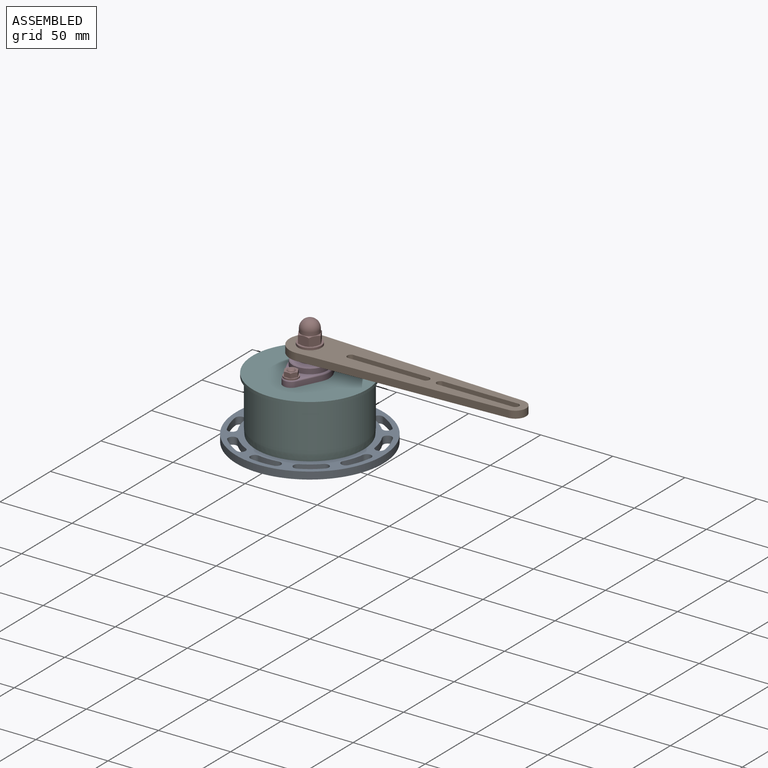
[diagram: assembled view]
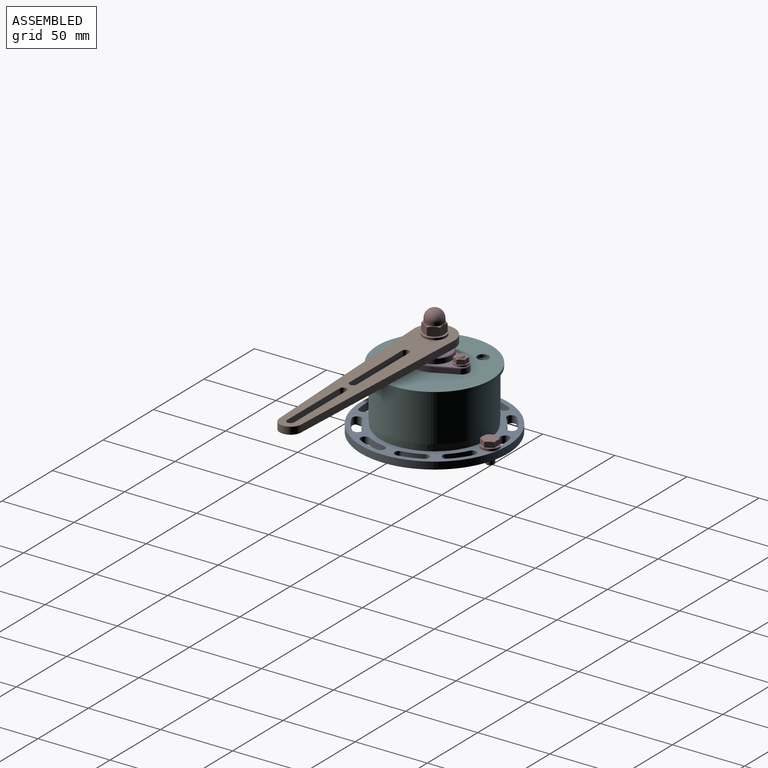
[diagram: assembled view, second angle]
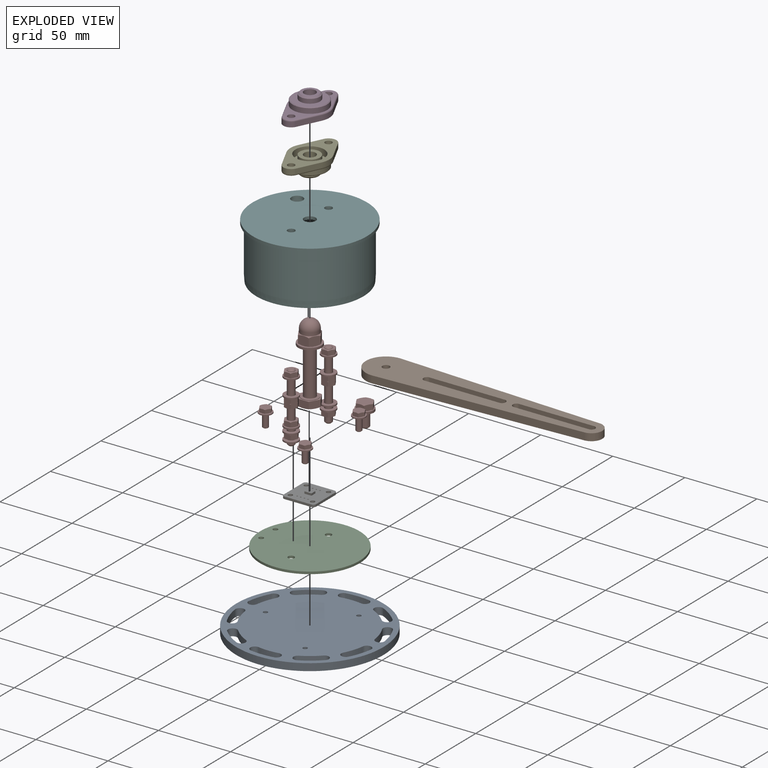
[diagram: exploded view]
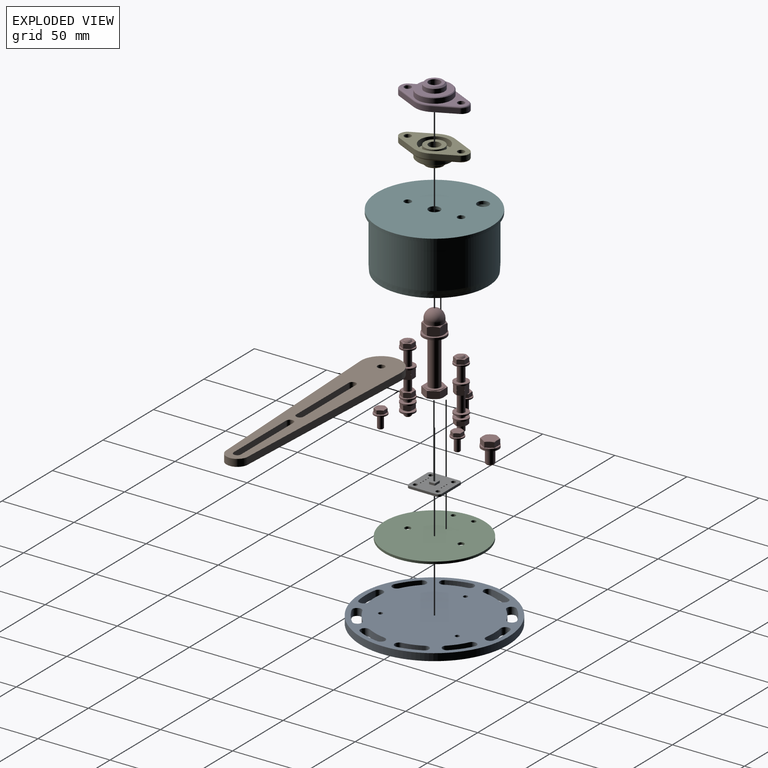
[diagram: exploded view, second angle]
FCSTD DOCUMENT  (FreeCAD 1.0R39319 (Git))
Label: RuderlageV2
License: All rights reserved
objects: Part::FeaturePython×31, TechDraw::DrawViewDimension×20, Sketcher::SketchObject×8, TechDraw::DrawProjGroupItem×7, PartDesign::Pad×6, PartDesign::Body×6, TechDraw::DrawViewAnnotation×6, App::Link×4, TechDraw::DrawSVGTemplate×3, TechDraw::DrawPage×3, App::Part×2, PartDesign::SubShapeBinder×1, Part::Cylinder×1, Part::Cut×1, PartDesign::Pocket×1, PartDesign::PolarPattern×1, TechDraw::DrawViewSection×1
note: 105 computed .brp shape members not serialized (recipe doc carries the construction recipe); baked Part::Feature solids carry a one-line shape summary decoded from their .brp
EXTERNAL_REF file=KFL08.FCStd obj=Body
EXTERNAL_REF file=HtMuffenstopfenDn75.FCStd obj=Body
EXTERNAL_REF file=ZugentlastungKAZU_0442.FCStd obj=Body

FEATURE [App::Link] Link  label="LagerTop"
  LinkPlacement = pos=(6.46027e-06,-1.279e-13,38.32) rot=(0,0,1;0rad)
  LinkedObject = -> <external KFL08.FCStd>#Body
  Placement = pos=(6.46027e-06,-1.279e-13,38.32) rot=(0,0,1;0rad)
FEATURE [App::Link] Link001  label="LagerBottom"
  LinkPlacement = pos=(6.10118e-06,4.654e-13,36.19) rot=(0,1,0;3.14159rad)
  LinkedObject = -> <external KFL08.FCStd>#Body
  Placement = pos=(6.10118e-06,4.654e-13,36.19) rot=(0,1,0;3.14159rad)
FEATURE [Sketcher::SketchObject] Sketch
  ArcFitTolerance = 1e-06
  AttachmentSupport = -> [XY_Plane]
  FullyConstrained = true
  MakeInternals = false
  MapMode = 5
  sketch-geometry (17):
    g0: Circle CenterX=-8.72817e-11 CenterY=-1.54759e-11 CenterZ=0 NormalX=0 NormalY=0 NormalZ=1 AngleXU=0 Radius=35.75
    g1: Circle CenterX=-18.5 CenterY=-4.035e-13 CenterZ=0 NormalX=0 NormalY=0 NormalZ=1 AngleXU=0 Radius=1.6
    g2: Circle CenterX=18.5 CenterY=-2.90037e-11 CenterZ=0 NormalX=0 NormalY=0 NormalZ=1 AngleXU=0 Radius=1.6
    g3: LineSegment [constr] StartX=21.6506 StartY=12.5 StartZ=0 EndX=-21.6506 EndY=12.5 EndZ=0
    g4: LineSegment [constr] StartX=-21.6506 StartY=12.5 StartZ=0 EndX=-1.03665e-10 EndY=-25 EndZ=0
    g5: LineSegment [constr] StartX=-1.03665e-10 StartY=-25 StartZ=0 EndX=21.6506 EndY=12.5 EndZ=0
    g6: Circle [constr] CenterX=-8.72817e-11 CenterY=-1.54759e-11 CenterZ=0 NormalX=0 NormalY=0 NormalZ=1 AngleXU=0 Radius=25
    g7: Circle CenterX=-21.6506 CenterY=12.5 CenterZ=0 NormalX=0 NormalY=0 NormalZ=1 AngleXU=0 Radius=5
    g8: Circle CenterX=21.6506 CenterY=12.5 CenterZ=0 NormalX=0 NormalY=0 NormalZ=1 AngleXU=0 Radius=5
    g9: Circle CenterX=-1.03665e-10 CenterY=-25 CenterZ=0 NormalX=0 NormalY=0 NormalZ=1 AngleXU=0 Radius=5
    g10: LineSegment [constr] StartX=2.63434e-11 StartY=30.75 StartZ=0 EndX=-26.6303 EndY=-15.375 EndZ=0
    g11: LineSegment [constr] StartX=-26.6303 StartY=-15.375 StartZ=0 EndX=26.6303 EndY=-15.375 EndZ=0
    g12: LineSegment [constr] StartX=26.6303 StartY=-15.375 StartZ=0 EndX=2.63434e-11 EndY=30.75 EndZ=0
    g13: Circle [constr] CenterX=-8.72817e-11 CenterY=-1.54759e-11 CenterZ=0 NormalX=0 NormalY=0 NormalZ=1 AngleXU=0 Radius=30.75
    g14: Circle CenterX=2.63434e-11 CenterY=30.75 CenterZ=0 NormalX=0 NormalY=0 NormalZ=1 AngleXU=0 Radius=2
    g15: Circle CenterX=-26.6303 CenterY=-15.375 CenterZ=0 NormalX=0 NormalY=0 NormalZ=1 AngleXU=0 Radius=2
    g16: Circle CenterX=26.6303 CenterY=-15.375 CenterZ=0 NormalX=0 NormalY=0 NormalZ=1 AngleXU=0 Radius=2
  constraints (41):
    c: Diameter(g0) = 71.5
    c: PointOnObject(g1,g-1)
    c: Equal(g1,g2)
    c: Diameter(g1) = 3.2
    c: Symmetric(g1,g2,g0)
    c: DistanceX(g1,g2) = 37
    c: Symmetric(g1,g2,g-2)
    c: Coincident(g3,g4)
    c: Coincident(g4,g5)
    c: Coincident(g5,g3)
    c: Equal(g3,g4)
    c: Equal(g3,g5)
    c: PointOnObject(g3,g6)
    c: PointOnObject(g4,g6)
    c: PointOnObject(g5,g6)
    c: Coincident(g6,g0)
    c: Horizontal(g3)
    c: Coincident(g7,g3)
    c: Diameter(g7) = 10
    c: Diameter(g6) = 50
    c: Coincident(g8,g3)
    c: Coincident(g9,g4)
    c: Equal(g7,g8)
    c: Equal(g8,g9)
    c: Coincident(g10,g11)
    c: Coincident(g11,g12)
    c: Coincident(g12,g10)
    c: Equal(g10,g11)
    c: Equal(g10,g12)
    c: PointOnObject(g10,g13)
    c: PointOnObject(g11,g13)
    c: PointOnObject(g12,g13)
    c: Coincident(g13,g0)
    c: PointOnObject(g12,g-2)
    c: Diameter(g13) = 61.5
    c: Coincident(g14,g10)
    c: Diameter(g14) = 4
    c: Coincident(g15,g10)
    c: Coincident(g16,g11)
    c: Equal(g14,g15)
    c: Equal(g15,g16)
FEATURE [Sketcher::SketchObject] Sketch005
  ArcFitTolerance = 0
  AttachmentSupport = -> [XY_Plane005]
  FullyConstrained = true
  MakeInternals = false
  MapMode = 5
  expr: Constraints[8] = 19 mm / 2
  sketch-geometry (26):
    g0: LineSegment StartX=-11.45 StartY=9.25 StartZ=0 EndX=-11.45 EndY=-9.25 EndZ=0
    g1: LineSegment StartX=-9.45 StartY=-11.25 StartZ=0 EndX=9.45 EndY=-11.25 EndZ=0
    g2: LineSegment StartX=11.45 StartY=-9.25 StartZ=0 EndX=11.45 EndY=9.25 EndZ=0
    g3: LineSegment StartX=9.45 StartY=11.25 StartZ=0 EndX=-9.45 EndY=11.25 EndZ=0
    g4: GeomPoint [constr] X=3.063e-13 Y=-4.789e-13 Z=0
    g5: Circle CenterX=-7.86091 CenterY=7.69455 CenterZ=0 NormalX=0 NormalY=0 NormalZ=1 AngleXU=0 Radius=1.5
    g6: Circle CenterX=7.86091 CenterY=7.69455 CenterZ=0 NormalX=0 NormalY=0 NormalZ=1 AngleXU=0 Radius=1.5
    g7: Circle CenterX=-7.86091 CenterY=-7.69455 CenterZ=0 NormalX=0 NormalY=0 NormalZ=1 AngleXU=0 Radius=1.5
    g8: Circle CenterX=7.86091 CenterY=-7.69455 CenterZ=0 NormalX=0 NormalY=0 NormalZ=1 AngleXU=0 Radius=1.5
    g9: LineSegment [constr] StartX=-9.45 StartY=9.25 StartZ=0 EndX=9.45 EndY=-9.25 EndZ=0
    g10: LineSegment [constr] StartX=-9.45 StartY=-9.25 StartZ=0 EndX=9.45 EndY=9.25 EndZ=0
    g11: Circle [constr] CenterX=3.063e-13 CenterY=-4.789e-13 CenterZ=0 NormalX=0 NormalY=0 NormalZ=1 AngleXU=0 Radius=9.5
    g12: Circle [constr] CenterX=3.063e-13 CenterY=-4.789e-13 CenterZ=0 NormalX=0 NormalY=0 NormalZ=1 AngleXU=0 Radius=11
    g13: ArcOfCircle CenterX=-9.45 CenterY=9.25 CenterZ=0 NormalX=0 NormalY=0 NormalZ=1 AngleXU=0 Radius=2 StartAngle=1.5708 EndAngle=3.14159
    g14: ArcOfCircle CenterX=9.45 CenterY=9.25 CenterZ=0 NormalX=0 NormalY=0 NormalZ=1 AngleXU=0 Radius=2 StartAngle=-9.9352e-12 EndAngle=1.5708
    g15: ArcOfCircle CenterX=-9.45 CenterY=-9.25 CenterZ=0 NormalX=0 NormalY=0 NormalZ=1 AngleXU=0 Radius=2 StartAngle=3.14159 EndAngle=4.71239
    g16: ArcOfCircle CenterX=9.45 CenterY=-9.25 CenterZ=0 NormalX=0 NormalY=0 NormalZ=1 AngleXU=0 Radius=2 StartAngle=4.71239 EndAngle=6.28319
    g17: Circle CenterX=-6.78897 CenterY=2.54 CenterZ=0 NormalX=0 NormalY=0 NormalZ=1 AngleXU=0 Radius=0.45
    g18: Circle CenterX=-6.78897 CenterY=0 CenterZ=0 NormalX=0 NormalY=0 NormalZ=1 AngleXU=0 Radius=0.45
    g19: Circle CenterX=-6.78897 CenterY=-2.54 CenterZ=0 NormalX=0 NormalY=0 NormalZ=1 AngleXU=0 Radius=0.45
    g20: Circle CenterX=6.78897 CenterY=-1.27 CenterZ=0 NormalX=0 NormalY=0 NormalZ=1 AngleXU=0 Radius=0.45
    g21: Circle CenterX=6.78897 CenterY=-3.81 CenterZ=0 NormalX=0 NormalY=0 NormalZ=1 AngleXU=0 Radius=0.45
    g22: Circle CenterX=6.78897 CenterY=1.27 CenterZ=0 NormalX=0 NormalY=0 NormalZ=1 AngleXU=0 Radius=0.45
    g23: Circle CenterX=6.78897 CenterY=3.81 CenterZ=0 NormalX=0 NormalY=0 NormalZ=1 AngleXU=0 Radius=0.45
    g24: GeomPoint [constr] X=6.78897 Y=6.64529 Z=0
    g25: GeomPoint [constr] X=-6.78897 Y=6.64529 Z=0
  constraints (62):
    c: Horizontal(g1)
    c: Vertical(g0)
    c: Coincident(g4,g-1)
    c: Diameter(g5) = 3
    c: Equal(g5,g6)
    c: Equal(g5,g7)
    c: Equal(g5,g8)
    c: Coincident(g12,g4)
    c: Radius(g11) = 9.5
    c: Radius(g12) = 11
    c: Coincident(g11,g4)
    c: PointOnObject(g6,g10)
    c: PointOnObject(g6,g12)
    c: PointOnObject(g5,g9)
    c: PointOnObject(g5,g12)
    c: Tangent(g3,g13) = -1.5708
    c: Tangent(g0,g13) = -1.5708
    c: Tangent(g3,g14) = -1.5708
    c: Tangent(g2,g14) = -1.5708
    c: Tangent(g1,g15) = -1.5708
    c: Tangent(g0,g15) = -1.5708
    c: Tangent(g1,g16) = -1.5708
    c: Tangent(g2,g16) = -1.5708
    c: DistanceY(g1,g3) = 22.5
    c: DistanceX(g0,g2) = 22.9
    c: Radius(g13) = 2
    c: Equal(g13,g14)
    c: Equal(g13,g15)
    c: Equal(g13,g16)
    c: Symmetric(g6,g7,g4)
    c: PointOnObject(g8,g9)
    c: PointOnObject(g8,g12)
    c: Coincident(g13,g9)
    c: Coincident(g10,g14)
    c: Coincident(g10,g15)
    c: Coincident(g9,g16)
    c: Symmetric(g3,g3,g-2)
    c: Symmetric(g2,g2,g-1)
    c: Diameter(g17) = 0.9
    c: Equal(g17,g18)
    c: Equal(g17,g19)
    c: Vertical(g17,g18)
    c: Vertical(g17,g19)
    c: DistanceY(g18,g17) = 2.54
    c: DistanceY(g19,g18) = 2.54
    c: PointOnObject(g18,g-1)
    c: Equal(g17,g23)
    c: Equal(g17,g22)
    c: Equal(g17,g20)
    c: Equal(g17,g21)
    c: Vertical(g23,g22)
    c: Vertical(g23,g21)
    c: DistanceY(g22,g23) = 2.54
    c: DistanceY(g21,g20) = 2.54
    c: DistanceY(g20,g22) = 2.54
    c: Symmetric(g22,g20,g-1)
    c: PointOnObject(g24,g10)
    c: PointOnObject(g24,g11)
    c: Vertical(g23,g24)
    c: PointOnObject(g25,g9)
    c: PointOnObject(g25,g11)
    c: Vertical(g25,g17)
FEATURE [PartDesign::Pad] Pad006
  Direction = (0,0,1)
  Length = 1.6
  Length2 = 10
  Profile = -> Sketch005
  ReferenceAxis = -> Sketch005 [N_Axis]
  Suppressed = false
  Type = 0
FEATURE [Sketcher::SketchObject] Sketch006
  ArcFitTolerance = 0
  AttachmentSupport = -> [XY_Plane006]
  FullyConstrained = true
  MakeInternals = false
  MapMode = 5
  sketch-geometry (5):
    g0: LineSegment StartX=-2.45 StartY=1.95 StartZ=0 EndX=-2.45 EndY=-1.95 EndZ=0
    g1: LineSegment StartX=-2.45 StartY=-1.95 StartZ=0 EndX=2.45 EndY=-1.95 EndZ=0
    g2: LineSegment StartX=2.45 StartY=-1.95 StartZ=0 EndX=2.45 EndY=1.95 EndZ=0
    g3: LineSegment StartX=2.45 StartY=1.95 StartZ=0 EndX=-2.45 EndY=1.95 EndZ=0
    g4: GeomPoint [constr] X=0 Y=0 Z=0
  constraints (12):
    c: Coincident(g0,g1)
    c: Coincident(g1,g2)
    c: Coincident(g2,g3)
    c: Coincident(g3,g0)
    c: Horizontal(g1)
    c: Horizontal(g3)
    c: Vertical(g0)
    c: Vertical(g2)
    c: Symmetric(g1,g0,g4)
    c: Coincident(g4,g-1)
    c: DistanceX(g3,g3) = 4.9
    c: DistanceY(g1,g2) = 3.9
FEATURE [PartDesign::Pad] Pad005
  Direction = (0,0,1)
  Length = 1.75
  Length2 = 10
  Profile = -> Sketch006
  ReferenceAxis = -> Sketch006 [N_Axis]
  Suppressed = false
  Type = 0
FEATURE [PartDesign::Body] Body005  label="Soic8"
  AllowCompound = false
  Group = -> [Sketch006,Pad005]
  Origin = -> Origin006
  Placement = pos=(0,0,1.7) rot=(0,0,1;1.5708rad)
  Tip = -> Pad005
FEATURE [Sketcher::SketchObject] Sketch007
  ArcFitTolerance = 0
  AttachmentSupport = -> [XY_Plane005]
  FullyConstrained = true
  MakeInternals = false
  MapMode = 5
FEATURE [PartDesign::Body] Body004  label="Platine"
  AllowCompound = false
  Group = -> [Sketch005,Pad006,Sketch007]
  Origin = -> Origin005
  Placement = pos=(0.166369,-0.166369,0.4) rot=(0,0,1;0rad)
  Tip = -> Pad006
FEATURE [App::Part] Part  label="Sensor"
  Group = -> [Body004,Body005]
  Origin = -> Origin004
  Placement = pos=(5.59289e-11,-1.421e-13,13.3) rot=(0,0,1;4.71239rad)
FEATURE [Part::FeaturePython] Screw  label="M8x40-Screw"  # WARN: FeaturePython — macro-defined, semantics opaque (R4)
  Diameter = 9
  Invert = false
  LeftHanded = false
  Length = 5
  LengthCustom = 40
  MatchOuter = false
  OffsetAngle = 0
  Placement = pos=(5.00839e-06,6.429e-13,22.79) rot=(0,1,0;3.14159rad)
  Thread = false
  Type = 40
FEATURE [App::Link] Link002  label="MuffenStopfen HT75"
  LinkPlacement = pos=(6.46027e-06,0,38.32) rot=(0,1,0;1.5708rad)
  LinkedObject = -> <external HtMuffenstopfenDn75.FCStd>#Body
  Placement = pos=(6.46027e-06,0,38.32) rot=(0,1,0;1.5708rad)
FEATURE [Part::FeaturePython] ThreadedRod  label="M5x48-ThreadedRod"  # WARN: FeaturePython — macro-defined, semantics opaque (R4)
  Diameter = 7
  DiameterCustom = 4
  Invert = true
  LeftHanded = false
  Length = 48
  MatchOuter = false
  OffsetAngle = 0
  PitchCustom = 1
  Placement = pos=(2.89997e-11,18.5,47.1) rot=(0,0,1;0rad)
  Thread = false
  Type = 4
FEATURE [Part::FeaturePython] ThreadedRod001  label="M5x48-ThreadedRod001"  # WARN: FeaturePython — macro-defined, semantics opaque (R4)
  Diameter = 7
  DiameterCustom = 4
  Invert = true
  LeftHanded = false
  Length = 48
  MatchOuter = false
  OffsetAngle = 0
  PitchCustom = 1
  Placement = pos=(4.077e-13,-18.5,47.1) rot=(0,0,1;0rad)
  Thread = false
  Type = 4
FEATURE [Part::FeaturePython] Washer001  label="M5-Washer001"  # WARN: FeaturePython — macro-defined, semantics opaque (R4)
  Diameter = 6
  Invert = false
  MatchOuter = false
  OffsetAngle = 0
  Placement = pos=(4.1e-15,-18.5,2.1) rot=(0,0,1;0rad)
  Type = 8
FEATURE [Part::FeaturePython] Nut  label="M5-Nut"  # WARN: FeaturePython — macro-defined, semantics opaque (R4)
  Diameter = 7
  Invert = false
  LeftHanded = false
  MatchOuter = false
  OffsetAngle = 0
  Placement = pos=(2.89992e-11,18.5,7.6) rot=(0,1,0;3.14159rad)
  Thread = false
  Type = 31
FEATURE [Part::FeaturePython] Nut001  label="M5-Nut016"  # WARN: FeaturePython — macro-defined, semantics opaque (R4)
  Diameter = 7
  Invert = false
  LeftHanded = false
  MatchOuter = false
  OffsetAngle = 0
  Placement = pos=(4.3e-15,-18.5,4.0143) rot=(0,0,1;0rad)
  Thread = false
  Type = 31
FEATURE [Part::FeaturePython] Nut002  label="M5-Nut007"  # WARN: FeaturePython — macro-defined, semantics opaque (R4)
  Diameter = 7
  Invert = false
  LeftHanded = false
  MatchOuter = false
  OffsetAngle = 0
  Placement = pos=(6.46027e-06,-18.5,42.62) rot=(0,0,1;0rad)
  Thread = false
  Type = 31
FEATURE [Part::FeaturePython] Nut003  label="M5-Nut008"  # WARN: FeaturePython — macro-defined, semantics opaque (R4)
  Diameter = 7
  Invert = false
  LeftHanded = false
  MatchOuter = false
  OffsetAngle = 0
  Placement = pos=(6.46027e-06,18.5,42.6343) rot=(0,0,1;0rad)
  Thread = false
  Type = 31
FEATURE [Part::FeaturePython] Washer002  label="M5-Washer002"  # WARN: FeaturePython — macro-defined, semantics opaque (R4)
  Diameter = 6
  Invert = false
  MatchOuter = false
  OffsetAngle = 0
  Placement = pos=(5.70777e-06,18.5,29.89) rot=(0,0,1;0rad)
  Type = 8
FEATURE [Part::FeaturePython] Washer003  label="M5-Washer003"  # WARN: FeaturePython — macro-defined, semantics opaque (R4)
  Diameter = 6
  Invert = false
  MatchOuter = false
  OffsetAngle = 0
  Placement = pos=(5.70778e-06,-18.5,29.89) rot=(0,0,1;0rad)
  Type = 8
FEATURE [Part::FeaturePython] Washer004  label="M5-Washer004"  # WARN: FeaturePython — macro-defined, semantics opaque (R4)
  Diameter = 6
  Invert = false
  MatchOuter = false
  OffsetAngle = 0
  Placement = pos=(6.46027e-06,18.5,41.82) rot=(0,0,1;0rad)
  Type = 8
FEATURE [Part::FeaturePython] Washer005  label="M5-Washer005"  # WARN: FeaturePython — macro-defined, semantics opaque (R4)
  Diameter = 6
  Invert = false
  MatchOuter = false
  OffsetAngle = 0
  Placement = pos=(6.46027e-06,-18.5,41.82) rot=(0,0,1;0rad)
  Type = 8
FEATURE [Part::FeaturePython] Nut004  label="M5-Nut009"  # WARN: FeaturePython — macro-defined, semantics opaque (R4)
  Diameter = 7
  Invert = false
  LeftHanded = false
  MatchOuter = false
  OffsetAngle = 0
  Placement = pos=(6.46027e-06,18.5,26.6343) rot=(0,0,1;0rad)
  Thread = false
  Type = 31
FEATURE [Part::FeaturePython] Nut005  label="M5-Nut010"  # WARN: FeaturePython — macro-defined, semantics opaque (R4)
  Diameter = 7
  Invert = false
  LeftHanded = false
  MatchOuter = false
  OffsetAngle = 0
  Placement = pos=(6.46027e-06,-18.5,26.62) rot=(0,0,1;0rad)
  Thread = false
  Type = 31
FEATURE [Part::FeaturePython] Screw001  label="M6x12-Screw"  # WARN: FeaturePython — macro-defined, semantics opaque (R4)
  Diameter = 8
  Invert = false
  LeftHanded = false
  Length = 0
  LengthCustom = 12
  MatchOuter = false
  OffsetAngle = 0
  Placement = pos=(7.5,43.8634,0.7) rot=(0,0,1;0rad)
  Thread = false
  Type = 40
FEATURE [Part::FeaturePython] Washer006  label="M6-Washer"  # WARN: FeaturePython — macro-defined, semantics opaque (R4)
  Diameter = 7
  Invert = false
  MatchOuter = false
  OffsetAngle = 0
  Placement = pos=(7.5,43.8634,-0.9) rot=(0,0,1;0rad)
  Type = 8
FEATURE [App::Link] Link003  label="Zugentlastung"
  LinkPlacement = pos=(-28.55,-1.60916e-07,9.9643) rot=(0.57735,0.57735,0.57735;2.0944rad)
  LinkedObject = -> <external ZugentlastungKAZU_0442.FCStd>#Body
  Placement = pos=(-28.55,-1.60916e-07,9.9643) rot=(0.57735,0.57735,0.57735;2.0944rad)
FEATURE [Part::FeaturePython] Washer007  label="M8-Washer"  # WARN: FeaturePython — macro-defined, semantics opaque (R4)
  Diameter = 8
  Invert = false
  MatchOuter = false
  OffsetAngle = 0
  Placement = pos=(0,0,55) rot=(0,0,1;0rad)
  Type = 8
FEATURE [Part::FeaturePython] Nut006  label="M8-Nut"  # WARN: FeaturePython — macro-defined, semantics opaque (R4)
  Diameter = 4
  Invert = false
  LeftHanded = false
  MatchOuter = false
  OffsetAngle = 0
  Placement = pos=(0,0,56.6) rot=(0,0,1;0rad)
  Thread = false
  Type = 9
FEATURE [TechDraw::DrawSVGTemplate] Template
  Height = 210
  Orientation = 1
  Template = C:/Program Files/FreeCAD/data/Mod/TechDraw/Templates/Default_Template_A4_Landscape.svg
  Width = 297
FEATURE [Sketcher::SketchObject] Sketch018
  ArcFitTolerance = 1e-06
  AttachmentSupport = -> [XY_Plane017]
  FullyConstrained = true
  MakeInternals = false
  MapMode = 5
  sketch-geometry (14):
    g0: ArcOfCircle CenterX=2.562e-13 CenterY=0 CenterZ=0 NormalX=0 NormalY=0 NormalZ=1 AngleXU=0 Radius=14 StartAngle=1.52517 EndAngle=4.75802
    g1: Circle [constr] CenterX=2.562e-13 CenterY=0 CenterZ=0 NormalX=0 NormalY=0 NormalZ=1 AngleXU=0 Radius=150
    g2: ArcOfCircle CenterX=90.5 CenterY=-1e-16 CenterZ=0 NormalX=0 NormalY=0 NormalZ=1 AngleXU=0 Radius=2.55 StartAngle=1.5708 EndAngle=4.71239
    g3: ArcOfCircle CenterX=142.5 CenterY=-2.8e-15 CenterZ=0 NormalX=0 NormalY=0 NormalZ=1 AngleXU=0 Radius=2.55 StartAngle=4.71239 EndAngle=7.85398
    g4: LineSegment StartX=90.5 StartY=2.55 StartZ=0 EndX=142.5 EndY=2.55 EndZ=0
    g5: LineSegment StartX=90.5 StartY=-2.55 StartZ=0 EndX=142.5 EndY=-2.55 EndZ=0
    g6: ArcOfCircle CenterX=142.5 CenterY=-2.8e-15 CenterZ=0 NormalX=0 NormalY=0 NormalZ=1 AngleXU=0 Radius=7.5 StartAngle=4.75802 EndAngle=7.80835
    g7: LineSegment StartX=0.638596 StartY=13.9854 StartZ=0 EndX=142.842 EndY=7.49219 EndZ=0
    g8: LineSegment StartX=142.842 StartY=-7.49219 StartZ=0 EndX=0.638596 EndY=-13.9854 EndZ=0
    g9: ArcOfCircle CenterX=28.5 CenterY=-1e-16 CenterZ=0 NormalX=0 NormalY=0 NormalZ=1 AngleXU=0 Radius=2.55 StartAngle=1.5708 EndAngle=4.71239
    g10: ArcOfCircle CenterX=80.5 CenterY=-5.1e-15 CenterZ=0 NormalX=0 NormalY=0 NormalZ=1 AngleXU=0 Radius=2.55 StartAngle=4.71239 EndAngle=7.85398
    g11: LineSegment StartX=28.5 StartY=2.55 StartZ=0 EndX=80.5 EndY=2.55 EndZ=0
    g12: LineSegment StartX=28.5 StartY=-2.55 StartZ=0 EndX=80.5 EndY=-2.55 EndZ=0
    g13: Circle CenterX=2.562e-13 CenterY=0 CenterZ=0 NormalX=0 NormalY=0 NormalZ=1 AngleXU=0 Radius=2.5
  constraints (32):
    c: Coincident(g0,g-1)
    c: Diameter(g0) = 28
    c: Coincident(g1,g0)
    c: Diameter(g1) = 300
    c: Tangent(g2,g4) = 1.5708
    c: Tangent(g2,g5) = -1.5708
    c: Tangent(g3,g4) = 1.5708
    c: Tangent(g3,g5) = -1.5708
    c: Equal(g2,g3)
    c: Horizontal(g5)
    c: PointOnObject(g2,g-1)
    c: Tangent(g6,g7) = 1.5708
    c: Tangent(g6,g8) = 1.5708
    c: Tangent(g0,g8) = 1.5708
    c: Tangent(g0,g7) = 1.5708
    c: Tangent(g6,g1)
    c: Tangent(g9,g11) = 1.5708
    c: Tangent(g9,g12) = -1.5708
    c: Tangent(g10,g11) = 1.5708
    c: Tangent(g10,g12) = -1.5708
    c: Equal(g9,g10)
    c: Horizontal(g12)
    c: PointOnObject(g9,g-1)
    c: Radius(g10) = 2.55
    c: Equal(g12,g5)
    c: DistanceX(g10,g2) = 10
    c: DistanceX(g2,g3) = 52
    c: Radius(g6) = 7.5
    c: Coincident(g3,g6)
    c: Equal(g10,g2)
    c: Coincident(g13,g0)
    c: Diameter(g13) = 5
FEATURE [PartDesign::Pad] Pad015
  Direction = (0,0,1)
  Length = 5
  Length2 = 10
  Profile = -> Sketch018
  ReferenceAxis = -> Sketch018 [N_Axis]
  Suppressed = false
  Type = 0
FEATURE [PartDesign::Body] Body014  label="Arm001"
  AllowCompound = false
  Group = -> [Sketch018,Pad015]
  Origin = -> Origin017
  Placement = pos=(0,0,51) rot=(0,0,1;0rad)
  Tip = -> Pad015
FEATURE [TechDraw::DrawProjGroupItem] View002  label="Arm"
  CoarseView = false
  Direction = (0,0,1)
  Focus = 100
  HardHidden = false
  IsoCount = 0
  IsoHidden = false
  IsoVisible = false
  LockPosition = false
  Perspective = false
  Rotation = 0
  RotationVector = (1,0,0)
  ScaleType = 0
  ScrubCount = 0
  SeamHidden = false
  SeamVisible = true
  SmoothHidden = false
  SmoothVisible = true
  Source = -> [Body014]
  Type = 0
  X = 138.844
  XDirection = (1,0,0)
  Y = 25.6049
FEATURE [TechDraw::DrawViewDimension] Dimension002
  AngleOverride = false
  Arbitrary = false
  ArbitraryTolerances = false
  BoxCorners = (2) [(-82,-14,0),(82,14,0)]
  EqualTolerance = true
  ExtensionAngle = 0
  FormatSpec = %.2f
  FormatSpecOverTolerance = %+.2f
  FormatSpecUnderTolerance = %+.2f
  Inverted = false
  LineAngle = 0
  LockPosition = false
  MeasureType = 1
  OverTolerance = 0
  References2D = -> [View002]
  Rotation = 0
  ScaleType = 0
  TheoreticalExact = false
  Type = 1
  UnderTolerance = 0
  X = 0
  Y = -12.1657
FEATURE [PartDesign::SubShapeBinder] Binder
  BindCopyOnChange = 0
  BindMode = 0
  ClaimChildren = false
  Context = -> Body012 [Binder.]
  Fuse = false
  MakeFace = true
  OffsetFill = false
  OffsetIntersection = false
  OffsetJoinType = 0
  OffsetOpenResult = false
  PartialLoad = false
  Relative = true
  Support = -> [Body[Pad.Face10]]
  _Version = 2
FEATURE [Sketcher::SketchObject] Sketch015
  ArcFitTolerance = 1e-06
  AttachmentSupport = -> [XY_Plane015]
  ExternalGeometry = -> [Binder]
  FullyConstrained = true
  MakeInternals = false
  MapMode = 5
  sketch-geometry (5):
    g0: Circle CenterX=-1.952e-13 CenterY=-3.03e-14 CenterZ=0 NormalX=0 NormalY=0 NormalZ=1 AngleXU=0 Radius=51
    g1: Circle [constr] CenterX=-1.952e-13 CenterY=-3.03e-14 CenterZ=0 NormalX=0 NormalY=0 NormalZ=1 AngleXU=0 Radius=44.5
    g2: Circle CenterX=15.375 CenterY=26.6303 CenterZ=0 NormalX=0 NormalY=0 NormalZ=1 AngleXU=0 Radius=1.5
    g3: Circle CenterX=-30.75 CenterY=0 CenterZ=0 NormalX=0 NormalY=0 NormalZ=1 AngleXU=0 Radius=1.5
    g4: Circle CenterX=15.375 CenterY=-26.6303 CenterZ=0 NormalX=0 NormalY=0 NormalZ=1 AngleXU=0 Radius=1.5
  constraints (10):
    c: Coincident(g0,g-1)
    c: Coincident(g1,g0)
    c: Diameter(g1) = 89
    c: Diameter(g0) = 102
    c: Coincident(g2,g-3)
    c: Coincident(g3,g-4)
    c: Coincident(g4,g-5)
    c: Diameter(g2) = 3
    c: Equal(g2,g4)
    c: Equal(g4,g3)
FEATURE [PartDesign::Pad] Pad013
  Direction = (0,0,1)
  Length = 5
  Length2 = 10
  Profile = -> Sketch015
  ReferenceAxis = -> Sketch015 [N_Axis]
  Reversed = true
  Suppressed = false
  Type = 0
FEATURE [TechDraw::DrawViewDimension] Dimension004
  AngleOverride = false
  Arbitrary = false
  ArbitraryTolerances = false
  BoxCorners = (2) [(-82,-14,0),(82,14,0)]
  EqualTolerance = true
  ExtensionAngle = 0
  FormatSpec = ⌀%.2f
  FormatSpecOverTolerance = %+.2f
  FormatSpecUnderTolerance = %+.2f
  Inverted = false
  LineAngle = 0
  LockPosition = false
  MeasureType = 1
  OverTolerance = 0
  References2D = -> [View002]
  Rotation = 0
  ScaleType = 0
  TheoreticalExact = false
  Type = 5
  UnderTolerance = 0
  X = -50.7863
  Y = 12.1513
FEATURE [TechDraw::DrawViewDimension] Dimension005
  AngleOverride = false
  Arbitrary = false
  ArbitraryTolerances = false
  BoxCorners = (2) [(-82,-14,0),(82,14,0)]
  EqualTolerance = true
  ExtensionAngle = 0
  FormatSpec = ⌀%.2f
  FormatSpecOverTolerance = %+.2f
  FormatSpecUnderTolerance = %+.2f
  Inverted = false
  LineAngle = 0
  LockPosition = false
  MeasureType = 1
  OverTolerance = 0
  References2D = -> [View002]
  Rotation = 0
  ScaleType = 0
  TheoreticalExact = false
  Type = 5
  UnderTolerance = 0
  X = 18.6944
  Y = 14.3323
FEATURE [TechDraw::DrawSVGTemplate] Template001
  Height = 210
  Orientation = 1
  Template = C:/Program Files/FreeCAD/data/Mod/TechDraw/Templates/Default_Template_A4_Landscape.svg
  Width = 297
FEATURE [Part::FeaturePython] Washer010  label="M5-Washer"  # WARN: FeaturePython — macro-defined, semantics opaque (R4)
  Diameter = 6
  Invert = false
  MatchOuter = false
  OffsetAngle = 0
  Placement = pos=(4.3e-15,-18.5,7.51) rot=(0,0,1;0rad)
  Type = 8
FEATURE [Part::FeaturePython] Washer013  label="M5-Washer016"  # WARN: FeaturePython — macro-defined, semantics opaque (R4)
  Diameter = 6
  Invert = false
  MatchOuter = false
  OffsetAngle = 0
  Placement = pos=(-4.1e-15,18.5,7.61809) rot=(0,0,1;0rad)
  Type = 8
FEATURE [Part::FeaturePython] Washer017  label="M5-Washer014"  # WARN: FeaturePython — macro-defined, semantics opaque (R4)
  Diameter = 6
  Invert = false
  MatchOuter = false
  OffsetAngle = 0
  Placement = pos=(4.3e-15,18.5,10.8143) rot=(0,0,1;0rad)
  Type = 8
FEATURE [Part::FeaturePython] Washer018  label="M5-Washer015"  # WARN: FeaturePython — macro-defined, semantics opaque (R4)
  Diameter = 6
  Invert = false
  MatchOuter = false
  OffsetAngle = 0
  Placement = pos=(4.3e-15,-18.5,10.8143) rot=(0,0,1;0rad)
  Type = 8
FEATURE [Part::FeaturePython] Nut008  label="M5-Nut017"  # WARN: FeaturePython — macro-defined, semantics opaque (R4)
  Diameter = 7
  Invert = false
  LeftHanded = false
  MatchOuter = false
  OffsetAngle = 0
  Placement = pos=(4.3e-15,-18.5,11.9143) rot=(0,0,1;0rad)
  Thread = false
  Type = 31
FEATURE [Part::FeaturePython] Nut009  label="M5-Nut011"  # WARN: FeaturePython — macro-defined, semantics opaque (R4)
  Diameter = 7
  Invert = false
  LeftHanded = false
  MatchOuter = false
  OffsetAngle = 0
  Placement = pos=(6.46027e-06,18.5,23.4343) rot=(0,0,1;0rad)
  Thread = false
  Type = 31
FEATURE [Part::Cylinder] Cylinder  label="MagnetDiametral"
  Angle = 360
  AttacherType = Attacher::AttachEngine3D
  FirstAngle = 0
  Height = 3
  Placement = pos=(5.00839e-06,6.429e-13,17.39) rot=(0,0,1;0rad)
  Radius = 3
  SecondAngle = 0
FEATURE [Part::Cut] Cut
  Base = -> Screw
  Tool = -> Cylinder
FEATURE [Sketcher::SketchObject] Sketch023
  ArcFitTolerance = 1e-06
  AttachmentSupport = -> [XY_Plane022]
  FullyConstrained = true
  MakeInternals = false
  MapMode = 5
  sketch-geometry (21):
    g0: Circle CenterX=1e-16 CenterY=0 CenterZ=0 NormalX=0 NormalY=0 NormalZ=1 AngleXU=0 Radius=34.5
    g1: Circle CenterX=0 CenterY=18.5 CenterZ=0 NormalX=0 NormalY=0 NormalZ=1 AngleXU=0 Radius=2.1
    g2: Circle CenterX=0 CenterY=-18.5 CenterZ=0 NormalX=0 NormalY=0 NormalZ=1 AngleXU=0 Radius=2.1
    g3: Circle [constr] CenterX=1e-16 CenterY=0 CenterZ=0 NormalX=0 NormalY=0 NormalZ=1 AngleXU=0 Radius=18.5
    g4: Circle [constr] CenterX=-3.64 CenterY=6.96 CenterZ=0 NormalX=0 NormalY=0 NormalZ=1 AngleXU=0 Radius=0.4
    g5: Circle [constr] CenterX=-1.1 CenterY=6.96 CenterZ=0 NormalX=0 NormalY=0 NormalZ=1 AngleXU=0 Radius=0.4
    g6: Circle [constr] CenterX=1.44 CenterY=6.96 CenterZ=0 NormalX=0 NormalY=0 NormalZ=1 AngleXU=0 Radius=0.4
    g7: Circle [constr] CenterX=3.98 CenterY=6.96 CenterZ=0 NormalX=0 NormalY=0 NormalZ=1 AngleXU=0 Radius=0.4
    g8: Circle [constr] CenterX=-2.37 CenterY=-6.62 CenterZ=0 NormalX=0 NormalY=0 NormalZ=1 AngleXU=0 Radius=0.4
    g9: Circle [constr] CenterX=0.17 CenterY=-6.62 CenterZ=0 NormalX=0 NormalY=0 NormalZ=1 AngleXU=0 Radius=0.4
    g10: Circle [constr] CenterX=2.71 CenterY=-6.62 CenterZ=0 NormalX=0 NormalY=0 NormalZ=1 AngleXU=0 Radius=0.4
    g11: LineSegment [constr] StartX=-9.08 StartY=11.62 StartZ=0 EndX=9.42 EndY=11.62 EndZ=0
    g12: ArcOfCircle [constr] CenterX=9.42 CenterY=9.62 CenterZ=0 NormalX=0 NormalY=0 NormalZ=1 AngleXU=0 Radius=2 StartAngle=7e-16 EndAngle=1.5708
    g13: LineSegment [constr] StartX=11.42 StartY=9.62 StartZ=0 EndX=11.42 EndY=-9.28 EndZ=0
    g14: ArcOfCircle [constr] CenterX=9.42 CenterY=-9.28 CenterZ=0 NormalX=0 NormalY=0 NormalZ=1 AngleXU=0 Radius=2 StartAngle=4.71239 EndAngle=6.28319
    g15: LineSegment [constr] StartX=9.42 StartY=-11.28 StartZ=0 EndX=-9.08 EndY=-11.28 EndZ=0
    g16: ArcOfCircle [constr] CenterX=-9.08 CenterY=-9.28 CenterZ=0 NormalX=0 NormalY=0 NormalZ=1 AngleXU=0 Radius=2 StartAngle=3.14159 EndAngle=4.71239
    g17: LineSegment [constr] StartX=-11.08 StartY=-9.28 StartZ=0 EndX=-11.08 EndY=9.62 EndZ=0
    g18: ArcOfCircle [constr] CenterX=-9.08 CenterY=9.62 CenterZ=0 NormalX=0 NormalY=0 NormalZ=1 AngleXU=0 Radius=2 StartAngle=1.5708 EndAngle=3.14159
    g19: Circle CenterX=-28.85 CenterY=7.05 CenterZ=0 NormalX=0 NormalY=0 NormalZ=1 AngleXU=0 Radius=1.6
    g20: Circle CenterX=-28.85 CenterY=-7.05 CenterZ=0 NormalX=0 NormalY=0 NormalZ=1 AngleXU=0 Radius=1.6
  constraints (59):
    c: Coincident(g0,g-1)
    c: Diameter(g0) = 69
    c: Diameter(g1) = 4.2
    c: Equal(g1,g2)
    c: Coincident(g3,g0)
    c: PointOnObject(g1,g3)
    c: Diameter(g3) = 37
    c: PointOnObject(g1,g-2)
    c: PointOnObject(g2,g3)
    c: PointOnObject(g2,g-2)
    c: Diameter(g4) = 0.8
    c: Equal(g8,g9)
    c: Equal(g9,g10)
    c: Equal(g10,g7)
    c: Equal(g7,g6)
    c: Equal(g6,g5)
    c: Horizontal(g6,g7)
    c: Horizontal(g8,g9)
    c: Horizontal(g9,g10)
    c: DistanceX(g8,g9) = 2.54
    c: DistanceX(g9,g10) = 2.54
    c: DistanceX(g4,g5) = 2.54
    c: DistanceX(g5,g6) = 2.54
    c: DistanceX(g6,g7) = 2.54
    c: DistanceX(g0,g9) = 0.17
    c: DistanceX(g5,g0) = 1.1
    c: DistanceY(g8,g4) = 13.58
    c: DistanceY(g0,g4) = 6.96
    c: Equal(g4,g5)
    c: Horizontal(g5,g6)
    c: Tangent(g11,g12) = 1.5708
    c: Coincident(g12,g13)
    c: Tangent(g13,g14) = 1.5708
    c: Tangent(g14,g15) = 1.5708
    c: Tangent(g15,g16) = 1.5708
    c: Coincident(g16,g17)
    c: Tangent(g17,g18) = 1.5708
    c: Coincident(g18,g11)
    c: Equal(g18,g12)
    c: Equal(g12,g16)
    c: Equal(g16,g14)
    c: Radius(g16) = 2
    c: Horizontal(g11)
    c: Horizontal(g15)
    c: Vertical(g17)
    c: Vertical(g13)
    c: DistanceX(g15,g15) = 18.5
    c: DistanceY(g17,g17) = 18.9
    c: DistanceX(g17,g0) = 11.08
    c: DistanceY(g0,g17) = 9.62
    c: Equal(g17,g13)
    c: Equal(g11,g15)
    c: Horizontal(g16,g13)
    c: Horizontal(g4,g5)
    c: Equal(g19,g20)
    c: Diameter(g19) = 3.2
    c: DistanceY(g20,g19) = 14.1
    c: Symmetric(g19,g20,g-1)
    c: DistanceX(g19,g0) = 28.85
FEATURE [PartDesign::Pad] Pad019
  Direction = (0,0,1)
  Length = 1.6
  Length2 = 10
  Profile = -> Sketch023
  ReferenceAxis = -> Sketch023 [N_Axis]
  Suppressed = false
  Type = 0
FEATURE [PartDesign::Body] Body018  label="MotherBoard"
  AllowCompound = false
  Group = -> [Sketch023,Pad019]
  Origin = -> Origin022
  Placement = pos=(5.11e-14,-3.6e-15,9.7143) rot=(0,0,1;0rad)
  Tip = -> Pad019
FEATURE [TechDraw::DrawViewAnnotation] Annotation
  Font = osifont
  LineSpace = 100
  LockPosition = false
  MaxWidth = -1
  Rotation = 0
  ScaleType = 2
  Text = 3,2mm Bohrung mit M5 Gewinde versehen
  TextSize = 5
  TextStyle = 0
  X = 219.586
  Y = 176.404
FEATURE [Sketcher::SketchObject] Sketch025
  ArcFitTolerance = 1e-06
  AttachmentSupport = -> [XY_Plane015]
  FullyConstrained = true
  MakeInternals = false
  MapMode = 5
  sketch-geometry (5):
    g0: Circle [constr] CenterX=2.55e-14 CenterY=-1.493e-13 CenterZ=0 NormalX=0 NormalY=0 NormalZ=1 AngleXU=0 Radius=44.5
    g1: ArcOfCircle CenterX=-3.38705e-10 CenterY=-5.80688e-11 CenterZ=0 NormalX=0 NormalY=0 NormalZ=1 AngleXU=0 Radius=47.6 StartAngle=1.40145 EndAngle=1.74014
    g2: ArcOfCircle CenterX=-7.5 CenterY=43.8634 CenterZ=0 NormalX=0 NormalY=0 NormalZ=1 AngleXU=0 Radius=3.1 StartAngle=1.74014 EndAngle=4.88174
    g3: ArcOfCircle CenterX=7.5 CenterY=43.8634 CenterZ=0 NormalX=0 NormalY=0 NormalZ=1 AngleXU=0 Radius=3.1 StartAngle=4.54304 EndAngle=7.68463
    g4: ArcOfCircle CenterX=-3.38705e-10 CenterY=-5.80688e-11 CenterZ=0 NormalX=0 NormalY=0 NormalZ=1 AngleXU=0 Radius=41.4 StartAngle=1.40145 EndAngle=1.74014
  constraints (12):
    c: Diameter(g0) = 89
    c: Coincident(g1,g4)
    c: Tangent(g4,g3) = 1.5708
    c: Tangent(g4,g2) = 1.5708
    c: Tangent(g1,g3) = -1.5708
    c: Tangent(g1,g2) = -1.5708
    c: Radius(g3) = 3.1
    c: PointOnObject(g2,g0)
    c: DistanceX(g2,g3) = 15
    c: Coincident(g-1,g0)
    c: Symmetric(g2,g3,g-2)
    c: Radius(g4) = 41.4
FEATURE [PartDesign::Pad] Pad
  Direction = (0,0,1)
  Length = 5
  Length2 = 10
  Profile = -> Sketch
  ReferenceAxis = -> Sketch [N_Axis]
  Suppressed = false
  Type = 0
FEATURE [PartDesign::Body] Body  label="Montageplatte"
  AllowCompound = false
  Group = -> [Sketch,Pad]
  Origin = -> Origin
  Placement = pos=(0,0,0) rot=(0,0,1;1.5708rad)
  Tip = -> Pad
FEATURE [TechDraw::DrawProjGroupItem] View001  label="Montageplatte Innen"
  CoarseView = false
  Direction = (0,0,-1)
  Focus = 100
  HardHidden = false
  IsoCount = 0
  IsoHidden = false
  IsoVisible = false
  LockPosition = false
  Perspective = false
  Rotation = 0
  RotationVector = (1,0,0)
  ScaleType = 0
  ScrubCount = 0
  SeamHidden = false
  SeamVisible = true
  SmoothHidden = false
  SmoothVisible = true
  Source = -> [Body]
  Type = 0
  X = 223.952
  XDirection = (-2e-16,1,0)
  Y = 132.536
FEATURE [TechDraw::DrawViewDimension] Dimension001
  AngleOverride = false
  Arbitrary = false
  ArbitraryTolerances = false
  BoxCorners = (2) [(-35.75,-35.75,0),(35.75,35.75,0)]
  EqualTolerance = true
  ExtensionAngle = 0
  FormatSpec = ⌀%.2f
  FormatSpecOverTolerance = %+.2f
  FormatSpecUnderTolerance = %+.2f
  Inverted = false
  LineAngle = 0
  LockPosition = false
  MeasureType = 1
  OverTolerance = 0
  References2D = -> [View001]
  Rotation = 0
  ScaleType = 0
  TheoreticalExact = false
  Type = 5
  UnderTolerance = 0
  X = -46.292
  Y = 23.5802
FEATURE [TechDraw::DrawViewDimension] Dimension006
  AngleOverride = false
  Arbitrary = false
  ArbitraryTolerances = false
  BoxCorners = (2) [(-35.75,-35.75,0),(35.75,35.75,0)]
  EqualTolerance = true
  ExtensionAngle = 0
  FormatSpec = ⌀%.2f
  FormatSpecOverTolerance = %+.2f
  FormatSpecUnderTolerance = %+.2f
  Inverted = false
  LineAngle = 0
  LockPosition = false
  MeasureType = 1
  OverTolerance = 0
  References2D = -> [View001]
  Rotation = 0
  ScaleType = 0
  TheoreticalExact = false
  Type = 5
  UnderTolerance = 0
  X = 46.1795
  Y = 8.13665
FEATURE [TechDraw::DrawViewDimension] Dimension014
  AngleOverride = false
  Arbitrary = false
  ArbitraryTolerances = false
  BoxCorners = (2) [(-35.75,-35.75,0),(35.75,35.75,0)]
  EqualTolerance = true
  ExtensionAngle = 0
  FormatSpec = ⌀%.2f
  FormatSpecOverTolerance = %+.2f
  FormatSpecUnderTolerance = %+.2f
  Inverted = false
  LineAngle = 0
  LockPosition = false
  MeasureType = 1
  OverTolerance = 0
  References2D = -> [View001]
  Rotation = 0
  ScaleType = 2
  TheoreticalExact = false
  Type = 5
  UnderTolerance = 0
  X = 42.1522
  Y = 23.104
FEATURE [TechDraw::DrawViewDimension] Dimension015
  AngleOverride = false
  Arbitrary = false
  ArbitraryTolerances = false
  BoxCorners = (2) [(-35.75,-35.75,0),(35.75,35.75,0)]
  EqualTolerance = true
  ExtensionAngle = 0
  FormatSpec = ⌀%.2f
  FormatSpecOverTolerance = %+.2f
  FormatSpecUnderTolerance = %+.2f
  Inverted = false
  LineAngle = 0
  LockPosition = false
  MeasureType = 1
  OverTolerance = 0
  References2D = -> [View001]
  Rotation = 0
  ScaleType = 2
  TheoreticalExact = false
  Type = 5
  UnderTolerance = 0
  X = -49.5679
  Y = -3.75707
FEATURE [PartDesign::Pocket] Pocket001
  BaseFeature = -> Pad013
  Direction = (0,0,-1)
  Length = 5
  Length2 = 5
  Profile = -> Sketch025
  ReferenceAxis = -> Sketch025 [N_Axis]
  Suppressed = false
  Type = 0
FEATURE [PartDesign::PolarPattern] PolarPattern
  Angle = 360
  Axis = -> Sketch025 [N_Axis]
  BaseFeature = -> Pocket001
  Mode = 0
  Occurrences = 10
  Offset = 120
  Originals = -> [Pocket001]
  Suppressed = false
  TransformMode = 0
FEATURE [PartDesign::Body] Body012  label="Montageplatte1"
  AllowCompound = false
  Group = -> [Sketch015,Pad013,Binder,Sketch025,Pocket001,PolarPattern]
  Origin = -> Origin015
  Tip = -> PolarPattern
FEATURE [TechDraw::DrawProjGroupItem] View  label="Montageplatte Aussen"
  CoarseView = false
  Direction = (0,0,1)
  Focus = 100
  HardHidden = false
  IsoCount = 0
  IsoHidden = false
  IsoVisible = false
  LockPosition = false
  Perspective = false
  Rotation = 0
  RotationVector = (1,0,0)
  ScaleType = 0
  ScrubCount = 0
  SeamHidden = false
  SeamVisible = true
  SmoothHidden = false
  SmoothVisible = true
  Source = -> [Body012]
  Type = 0
  X = 77.8187
  XDirection = (1,0,0)
  Y = 122.837
FEATURE [TechDraw::DrawViewDimension] Dimension
  AngleOverride = false
  Arbitrary = false
  ArbitraryTolerances = false
  BoxCorners = (2) [(-50.5,-50.5,0),(50.5,50.5,0)]
  EqualTolerance = true
  ExtensionAngle = 0
  FormatSpec = ⌀%.2f
  FormatSpecOverTolerance = %+.2f
  FormatSpecUnderTolerance = %+.2f
  Inverted = false
  LineAngle = 0
  LockPosition = false
  MeasureType = 1
  OverTolerance = 0
  References2D = -> [View]
  Rotation = 0
  ScaleType = 0
  TheoreticalExact = false
  Type = 5
  UnderTolerance = 0
  X = 65.3564
  Y = -14.4608
FEATURE [Part::FeaturePython] Washer019  label="M4-Washer"  # WARN: FeaturePython — macro-defined, semantics opaque (R4)
  Diameter = 5
  Invert = false
  MatchOuter = false
  OffsetAngle = 0
  Placement = pos=(-30.75,2.63363e-11,4.1) rot=(0,0,1;0rad)
  Type = 8
FEATURE [Part::FeaturePython] Screw002  label="M4x10-Screw0"  # WARN: FeaturePython — macro-defined, semantics opaque (R4)
  Diameter = 6
  Invert = false
  LeftHanded = false
  Length = 11
  LengthCustom = 10
  MatchOuter = false
  OffsetAngle = 0
  Placement = pos=(15.37,-26.63,5) rot=(0,0,1;0rad)
  Thread = false
  Type = 40
FEATURE [Part::FeaturePython] Screw003  label="M4x10-Screw"  # WARN: FeaturePython — macro-defined, semantics opaque (R4)
  Diameter = 6
  Invert = false
  LeftHanded = false
  Length = 11
  LengthCustom = 10
  MatchOuter = false
  OffsetAngle = 0
  Placement = pos=(-30.75,2.63363e-11,4.9) rot=(0,0,1;0rad)
  Thread = false
  Type = 40
FEATURE [Part::FeaturePython] Screw004  label="M4x10-Screw001"  # WARN: FeaturePython — macro-defined, semantics opaque (R4)
  Diameter = 6
  Invert = false
  LeftHanded = false
  Length = 11
  LengthCustom = 10
  MatchOuter = false
  OffsetAngle = 0
  Placement = pos=(15.375,26.6303,4.9) rot=(0,0,1;0rad)
  Thread = false
  Type = 40
FEATURE [TechDraw::DrawViewDimension] Dimension019
  AngleOverride = false
  Arbitrary = false
  ArbitraryTolerances = false
  BoxCorners = (2) [(-51,-51,0),(51,51,0)]
  EqualTolerance = true
  ExtensionAngle = 0
  FormatSpec = ⌀%.2f
  FormatSpecOverTolerance = %+.2f
  FormatSpecUnderTolerance = %+.2f
  Inverted = false
  LineAngle = 0
  LockPosition = false
  MeasureType = 1
  OverTolerance = 0
  References2D = -> [View]
  Rotation = 0
  ScaleType = 2
  TheoreticalExact = false
  Type = 5
  UnderTolerance = 0
  X = -17.7119
  Y = 3.80054
FEATURE [TechDraw::DrawViewAnnotation] Annotation001
  Font = osifont
  LineSpace = 100
  LockPosition = false
  MaxWidth = -1
  Rotation = 0
  ScaleType = 2
  Text = 3mm Bohrung mit M4 Gewinde versehen
  TextSize = 5
  TextStyle = 0
  X = 77.8187
  Y = 180.55
FEATURE [TechDraw::DrawViewAnnotation] Annotation002
  Font = osifont
  LineSpace = 100
  LockPosition = false
  MaxWidth = -1
  Rotation = 0
  ScaleType = 2
  Text = 5mm Bohrung mit M8 Gewinde versehen
  TextSize = 5
  TextStyle = 0
  X = 138.844
  Y = 46.9826
FEATURE [TechDraw::DrawViewAnnotation] Annotation003
  Font = osifont
  LineSpace = 100
  LockPosition = false
  MaxWidth = -1
  Rotation = 0
  ScaleType = 2
  Text = Alle Gewindebohrungen müssen entsprechend aufgebohrt werden
  TextSize = 5
  TextStyle = 0
  X = 151.05
  Y = 200.952
FEATURE [TechDraw::DrawPage] Page  label="Blechteile"
  KeepUpdated = true
  NextBalloonIndex = 1
  ProjectionType = 0
  Template = -> Template
  Views = -> [View,View001,View002,Dimension,Dimension001,Dimension002,Dimension004,Dimension005,Dimension006,Dimension014,Dimension015,Annotation,Dimension019,Annotation001,Annotation002,Annotation003]
FEATURE [TechDraw::DrawProjGroupItem] View005  label="Montageplatte Innen001"
  CoarseView = false
  Direction = (0,0,-1)
  Focus = 100
  HardHidden = false
  IsoCount = 0
  IsoHidden = false
  IsoVisible = false
  LockPosition = false
  Perspective = false
  Rotation = 0
  RotationVector = (1,0,0)
  ScaleType = 0
  ScrubCount = 0
  SeamHidden = false
  SeamVisible = true
  SmoothHidden = false
  SmoothVisible = true
  Type = 0
  X = 223.952
  XDirection = (-2e-16,1,0)
  Y = 132.536
FEATURE [TechDraw::DrawViewDimension] Dimension026
  AngleOverride = false
  Arbitrary = false
  ArbitraryTolerances = false
  BoxCorners = (2) [(-35.75,-35.75,0),(35.75,35.75,0)]
  EqualTolerance = true
  ExtensionAngle = 0
  FormatSpec = ⌀%.2f
  FormatSpecOverTolerance = %+.2f
  FormatSpecUnderTolerance = %+.2f
  Inverted = false
  LineAngle = 0
  LockPosition = false
  MeasureType = 1
  OverTolerance = 0
  References2D = -> [View005]
  Rotation = 0
  ScaleType = 2
  TheoreticalExact = false
  Type = 5
  UnderTolerance = 0
  X = 42.1522
  Y = 23.104
FEATURE [TechDraw::DrawViewDimension] Dimension021
  AngleOverride = false
  Arbitrary = false
  ArbitraryTolerances = false
  BoxCorners = (2) [(-35.75,-35.75,0),(35.75,35.75,0)]
  EqualTolerance = true
  ExtensionAngle = 0
  FormatSpec = ⌀%.2f
  FormatSpecOverTolerance = %+.2f
  FormatSpecUnderTolerance = %+.2f
  Inverted = false
  LineAngle = 0
  LockPosition = false
  MeasureType = 1
  OverTolerance = 0
  References2D = -> [View005]
  Rotation = 0
  ScaleType = 0
  TheoreticalExact = false
  Type = 5
  UnderTolerance = 0
  X = -46.292
  Y = 23.5802
FEATURE [Part::FeaturePython] Washer020  label="M4-Washer003"  # WARN: FeaturePython — macro-defined, semantics opaque (R4)
  Diameter = 5
  Invert = false
  MatchOuter = false
  OffsetAngle = 0
  Placement = pos=(15.375,26.6303,4.1) rot=(0,0,1;0rad)
  Type = 8
FEATURE [Part::FeaturePython] Washer021  label="M4-Washer004"  # WARN: FeaturePython — macro-defined, semantics opaque (R4)
  Diameter = 5
  Invert = false
  MatchOuter = false
  OffsetAngle = 0
  Placement = pos=(15.375,-26.6303,4.1) rot=(0,0,1;0rad)
  Type = 8
FEATURE [Part::FeaturePython] Nut010  label="M5-Nut012"  # WARN: FeaturePython — macro-defined, semantics opaque (R4)
  Diameter = 7
  Invert = false
  LeftHanded = false
  MatchOuter = false
  OffsetAngle = 0
  Placement = pos=(6.46027e-06,-18.5,23.42) rot=(0,0,1;0rad)
  Thread = false
  Type = 31
FEATURE [App::Part] Part001  label="Fasteners"
  Group = -> [ThreadedRod,ThreadedRod001,Nut,Nut002,Nut003,Nut001,Nut004,Nut005,Washer001,Washer003,Washer002,Washer004,Washer005,Screw001,Washer006,Nut006,Cut,Washer010,Washer013,Washer017,Washer018,Nut008,Nut009,Nut010,Washer007,Cylinder,Screw,Washer019,Washer020,Washer021,Screw002,Screw003,Screw004]
  Origin = -> Origin014
  Placement = pos=(0,0,0.9) rot=(0,0,1;0rad)
FEATURE [TechDraw::DrawProjGroupItem] View003
  CoarseView = false
  Direction = (0,0,1)
  Focus = 100
  HardHidden = false
  IsoCount = 0
  IsoHidden = false
  IsoVisible = false
  LockPosition = true
  Perspective = false
  Rotation = 0
  RotationVector = (1,0,0)
  ScaleType = 0
  ScrubCount = 0
  SeamHidden = false
  SeamVisible = true
  SmoothHidden = false
  SmoothVisible = true
  Source = -> [Body,Body012,Part,Part001,Screw001,Washer006,Nut006,Washer007,Body014]
  Type = 0
  X = 75.967
  XDirection = (0,-1,0)
  XSource = -> [Link,Link001,Link002]
  Y = 143.636
FEATURE [TechDraw::DrawViewSection] SectionView  label="Section Schnitt - Schnitt"
  BaseView = -> View003
  CoarseView = false
  CutSurfaceDisplay = 2
  Direction = (-1,2e-16,0)
  FileGeomPattern = C:/Program Files/FreeCAD/data/Mod/TechDraw/PAT/FCPAT.pat
  FileHatchPattern = C:/Program Files/FreeCAD/data/Mod/TechDraw/Patterns/simple.svg
  Focus = 100
  FuseBeforeCut = false
  HardHidden = false
  HatchOffset = (0,0,0)
  HatchRotation = 0
  HatchScale = 1
  IsoCount = 0
  IsoHidden = false
  IsoVisible = false
  LockPosition = true
  NameGeomPattern = Diamond
  Perspective = false
  Rotation = 0
  ScaleType = 0
  ScrubCount = 0
  SeamHidden = false
  SeamVisible = true
  SectionDirection = 4
  SectionLineStretch = 1
  SectionNormal = (-1,2e-16,0)
  SectionOrigin = (0,0,31.1)
  SectionSymbol = Schnitt
  SmoothHidden = false
  SmoothVisible = true
  Source = -> [Body,Body012,Part,Part001,Screw001,Washer006,Nut006,Washer007,Body014]
  TrimAfterCut = false
  UsePreviousCut = false
  X = 199.557
  XDirection = (-2e-16,-1,0)
  Y = 116.504
FEATURE [TechDraw::DrawViewDimension] Dimension007
  AngleOverride = false
  Arbitrary = false
  ArbitraryTolerances = false
  BoxCorners = (2) [(-51,-41.45,-1e-07),(51,41.45,1e-07)]
  EqualTolerance = true
  ExtensionAngle = 0
  FormatSpec = %.0f
  FormatSpecOverTolerance = %+.2f
  FormatSpecUnderTolerance = %+.2f
  Inverted = false
  LineAngle = 0
  LockPosition = false
  MeasureType = 1
  OverTolerance = 0
  References2D = -> [SectionView]
  Rotation = 0
  ScaleType = 0
  TheoreticalExact = false
  Type = 2
  UnderTolerance = 0
  X = 68.0449
  Y = -41.7962
FEATURE [TechDraw::DrawViewDimension] Dimension008
  AngleOverride = false
  Arbitrary = false
  ArbitraryTolerances = false
  BoxCorners = (2) [(-51,-41.45,-1e-07),(51,41.45,1e-07)]
  EqualTolerance = true
  ExtensionAngle = 0
  FormatSpec = %.1f
  FormatSpecOverTolerance = %+.2f
  FormatSpecUnderTolerance = %+.2f
  Inverted = false
  LineAngle = 0
  LockPosition = false
  MeasureType = 1
  OverTolerance = 0
  References2D = -> [SectionView]
  Rotation = 0
  ScaleType = 0
  TheoreticalExact = false
  Type = 2
  UnderTolerance = 0
  X = 42.8784
  Y = -43.3324
FEATURE [TechDraw::DrawViewDimension] Dimension009
  AngleOverride = false
  Arbitrary = false
  ArbitraryTolerances = false
  BoxCorners = (2) [(-51,-41.45,-1e-07),(51,41.45,1e-07)]
  EqualTolerance = true
  ExtensionAngle = 0
  FormatSpec = %.1f
  FormatSpecOverTolerance = %+.2f
  FormatSpecUnderTolerance = %+.2f
  Inverted = false
  LineAngle = 0
  LockPosition = false
  MeasureType = 1
  OverTolerance = 0
  References2D = -> [SectionView]
  Rotation = 0
  ScaleType = 0
  TheoreticalExact = false
  Type = 2
  UnderTolerance = 0
  X = 56.5404
  Y = -43.3208
FEATURE [TechDraw::DrawViewDimension] Dimension011
  AngleOverride = false
  Arbitrary = false
  ArbitraryTolerances = false
  BoxCorners = (2) [(-51,-41.45,-1e-07),(51,41.45,1e-07)]
  EqualTolerance = true
  ExtensionAngle = 0
  FormatSpec = %.1f
  FormatSpecOverTolerance = %+.2f
  FormatSpecUnderTolerance = %+.2f
  Inverted = false
  LineAngle = 0
  LockPosition = false
  MeasureType = 1
  OverTolerance = 0
  References2D = -> [SectionView]
  Rotation = 0
  ScaleType = 2
  TheoreticalExact = false
  Type = 2
  UnderTolerance = 0
  X = 4.11745
  Y = -41.694
FEATURE [TechDraw::DrawViewDimension] Dimension012
  AngleOverride = false
  Arbitrary = false
  ArbitraryTolerances = false
  BoxCorners = (2) [(-51,-41.45,-1e-07),(51,41.45,1e-07)]
  EqualTolerance = true
  ExtensionAngle = 0
  FormatSpec = %.2f
  FormatSpecOverTolerance = %+.2f
  FormatSpecUnderTolerance = %+.2f
  Inverted = false
  LineAngle = 0
  LockPosition = false
  MeasureType = 1
  OverTolerance = 0
  References2D = -> [SectionView]
  Rotation = 0
  ScaleType = 2
  TheoreticalExact = false
  Type = 2
  UnderTolerance = 0
  X = 22.8937
  Y = -44.1971
FEATURE [TechDraw::DrawViewDimension] Dimension018
  AngleOverride = false
  Arbitrary = false
  ArbitraryTolerances = false
  BoxCorners = (2) [(-51,-41.45,-1e-07),(51,41.45,1e-07)]
  EqualTolerance = true
  ExtensionAngle = 0
  FormatSpec = %.2f
  FormatSpecOverTolerance = %+.2f
  FormatSpecUnderTolerance = %+.2f
  Inverted = false
  LineAngle = 0
  LockPosition = false
  MeasureType = 1
  OverTolerance = 0
  References2D = -> [SectionView]
  Rotation = 0
  ScaleType = 2
  TheoreticalExact = false
  Type = 2
  UnderTolerance = 0
  X = -49.486
  Y = -7.05
FEATURE [TechDraw::DrawPage] Page001  label="Schnittzeichnung"
  KeepUpdated = true
  NextBalloonIndex = 1
  ProjectionType = 0
  Template = -> Template001
  Views = -> [View003,SectionView,Dimension007,Dimension008,Dimension009,Dimension011,Dimension012,Dimension018]
FEATURE [TechDraw::DrawSVGTemplate] Template002
  Height = 210
  Orientation = 1
  Template = C:/Program Files/FreeCAD/data/Mod/TechDraw/Templates/A4_Landscape_blank.svg
  Width = 297
FEATURE [TechDraw::DrawProjGroupItem] View006
  CoarseView = false
  Direction = (0,0,-1)
  Focus = 100
  HardHidden = false
  IsoCount = 0
  IsoHidden = false
  IsoVisible = false
  LockPosition = false
  Perspective = false
  Rotation = 0
  RotationVector = (1,0,0)
  ScaleType = 2
  ScrubCount = 0
  SeamHidden = false
  SeamVisible = true
  SmoothHidden = false
  SmoothVisible = true
  Type = 0
  X = 65.5017
  XDirection = (1,0,0)
  XSource = -> [Link002]
  Y = 107.371
FEATURE [TechDraw::DrawProjGroupItem] View007
  CoarseView = false
  Direction = (0,0,1)
  Focus = 100
  HardHidden = false
  IsoCount = 0
  IsoHidden = false
  IsoVisible = false
  LockPosition = false
  Perspective = false
  Rotation = 0
  RotationVector = (1,0,0)
  ScaleType = 2
  ScrubCount = 0
  SeamHidden = false
  SeamVisible = true
  SmoothHidden = false
  SmoothVisible = true
  Type = 0
  X = 199.654
  XDirection = (1,0,0)
  XSource = -> [Link002]
  Y = 107.371
FEATURE [TechDraw::DrawViewDimension] Dimension027
  AngleOverride = false
  Arbitrary = false
  ArbitraryTolerances = false
  BoxCorners = (2) [(-39.63,-39.63,0),(39.63,39.63,0)]
  EqualTolerance = true
  ExtensionAngle = 0
  FormatSpec = ⌀%.2f
  FormatSpecOverTolerance = %+.2f
  FormatSpecUnderTolerance = %+.2f
  Inverted = false
  LineAngle = 0
  LockPosition = false
  MeasureType = 1
  OverTolerance = 0
  References2D = -> [View006]
  Rotation = 0
  ScaleType = 2
  TheoreticalExact = false
  Type = 5
  UnderTolerance = 0
  X = 13.8917
  Y = 26.9839
FEATURE [TechDraw::DrawViewDimension] Dimension028
  AngleOverride = false
  Arbitrary = false
  ArbitraryTolerances = false
  BoxCorners = (2) [(-39.63,-39.63,0),(39.63,39.63,0)]
  EqualTolerance = true
  ExtensionAngle = 0
  FormatSpec = ⌀%.2f
  FormatSpecOverTolerance = %+.2f
  FormatSpecUnderTolerance = %+.2f
  Inverted = false
  LineAngle = 0
  LockPosition = false
  MeasureType = 1
  OverTolerance = 0
  References2D = -> [View006]
  Rotation = 0
  ScaleType = 2
  TheoreticalExact = false
  Type = 5
  UnderTolerance = 0
  X = 19.0238
  Y = 8.35161
FEATURE [TechDraw::DrawViewDimension] Dimension029
  AngleOverride = false
  Arbitrary = false
  ArbitraryTolerances = false
  BoxCorners = (2) [(-39.63,-39.63,0),(39.63,39.63,0)]
  EqualTolerance = true
  ExtensionAngle = 0
  FormatSpec = ⌀%.2f
  FormatSpecOverTolerance = %+.2f
  FormatSpecUnderTolerance = %+.2f
  Inverted = false
  LineAngle = 0
  LockPosition = false
  MeasureType = 1
  OverTolerance = 0
  References2D = -> [View006]
  Rotation = 0
  ScaleType = 2
  TheoreticalExact = false
  Type = 5
  UnderTolerance = 0
  X = -11.5206
  Y = -10.2807
FEATURE [TechDraw::DrawViewAnnotation] Annotation004
  Font = osifont
  LineSpace = 100
  LockPosition = false
  MaxWidth = -1
  Rotation = 0
  ScaleType = 2
  Text = Innen
  TextSize = 5
  TextStyle = 0
  X = 65.5017
  Y = 79.9311
FEATURE [TechDraw::DrawViewAnnotation] Annotation005
  Font = osifont
  LineSpace = 100
  LockPosition = false
  MaxWidth = -1
  Rotation = 0
  ScaleType = 2
  Text = Aussen
  TextSize = 5
  TextStyle = 0
  X = 199.654
  Y = 75.5271
FEATURE [TechDraw::DrawPage] Page002  label="Bohrschablone"
  KeepUpdated = true
  NextBalloonIndex = 1
  ProjectionType = 0
  Template = -> Template002
  Views = -> [View006,View007,Dimension027,Dimension028,Dimension029,Annotation004,Annotation005]

RESOLVED EXTERNAL PARTS (link-assembly join: the EXTERNAL_REF files above that resolve inside this repo's crawl, each included once):
---- part HtMuffenstopfenDn75.FCStd = doc fcstd_80c50572d830 ----
FCSTD DOCUMENT  (FreeCAD 1.0R39319 (Git))
Label: HtMuffenstopfenDn75
License: All rights reserved
objects: Sketcher::SketchObject×2, PartDesign::Revolution×1, PartDesign::Pocket×1, PartDesign::Body×1
note: 11 computed .brp shape members not serialized (recipe doc carries the construction recipe); baked Part::Feature solids carry a one-line shape summary decoded from their .brp

FEATURE [Sketcher::SketchObject] Sketch
  ArcFitTolerance = 1e-06
  AttachmentSupport = -> [XZ_Plane]
  FullyConstrained = true
  MakeInternals = false
  MapMode = 5
  Placement = pos=(0,0,0) rot=(1,0,0;1.5708rad)
  sketch-geometry (9):
    g0: LineSegment StartX=2.27143e-11 StartY=-2.84e-14 StartZ=0 EndX=2.27143e-11 EndY=39.63 EndZ=0
    g1: LineSegment StartX=2.27143e-11 StartY=39.63 StartZ=0 EndX=2.13 EndY=39.63 EndZ=0
    g2: LineSegment StartX=2.13 StartY=39.63 StartZ=0 EndX=2.13 EndY=37.5 EndZ=0
    g3: LineSegment StartX=2.13 StartY=37.5 StartZ=0 EndX=33.82 EndY=37.5 EndZ=0
    g4: LineSegment StartX=33.82 StartY=37.5 StartZ=0 EndX=38.32 EndY=37.2 EndZ=0
    g5: LineSegment StartX=38.32 StartY=37.2 StartZ=0 EndX=38.32 EndY=35.7 EndZ=0
    g6: LineSegment StartX=38.32 StartY=35.7 StartZ=0 EndX=2.13 EndY=35.7 EndZ=0
    g7: LineSegment StartX=2.13 StartY=35.7 StartZ=0 EndX=2.13 EndY=-2.84e-14 EndZ=0
    g8: LineSegment StartX=2.13 StartY=-2.84e-14 StartZ=0 EndX=2.27143e-11 EndY=-2.84e-14 EndZ=0
  constraints (26):
    c: Vertical(g0)
    c: Coincident(g0,g1)
    c: Horizontal(g1)
    c: Coincident(g1,g2)
    c: Vertical(g2)
    c: Coincident(g2,g3)
    c: Horizontal(g3)
    c: Coincident(g3,g4)
    c: Coincident(g4,g5)
    c: Coincident(g5,g6)
    c: Horizontal(g6)
    c: Coincident(g6,g7)
    c: Vertical(g7)
    c: Coincident(g7,g8)
    c: Coincident(g8,g0)
    c: DistanceY(g0,g0) = 39.63
    c: DistanceY(g7,g2) = 37.5
    c: Horizontal(g8)
    c: DistanceX(g1,g1) = 2.13
    c: Vertical(g2,g6)
    c: Vertical(g5)
    c: DistanceY(g6,g2) = 1.8
    c: DistanceX(g6,g5) = 36.19
    c: DistanceX(g3,g4) = 4.5
    c: Coincident(g0,g-1)
    c: DistanceY(g5,g5) = 1.5
FEATURE [PartDesign::Revolution] Revolution
  Angle = 360
  Angle2 = 60
  Axis = (1,0,0)
  Base = (0,0,0)
  Placement = pos=(0,0,0) rot=(1,0,0;1.5708rad)
  Profile = -> Sketch
  ReferenceAxis = -> X_Axis
  Suppressed = false
  Type = 0
FEATURE [Sketcher::SketchObject] Sketch001
  ArcFitTolerance = 1e-06
  AttachmentSupport = -> [Revolution]
  FullyConstrained = true
  MakeInternals = false
  MapMode = 5
  Placement = pos=(2.27143e-11,0,0) rot=(0.707107,0,-0.707107;3.14159rad)
  sketch-geometry (4):
    g0: Circle CenterX=-4.01e-14 CenterY=0 CenterZ=0 NormalX=0 NormalY=0 NormalZ=1 AngleXU=0 Radius=4
    g1: Circle CenterX=2e-14 CenterY=18.5 CenterZ=0 NormalX=0 NormalY=0 NormalZ=1 AngleXU=0 Radius=2.5
    g2: Circle CenterX=-1.761e-13 CenterY=-18.5 CenterZ=0 NormalX=0 NormalY=0 NormalZ=1 AngleXU=0 Radius=2.5
    g3: Circle CenterX=21.75 CenterY=-18.5 CenterZ=0 NormalX=0 NormalY=0 NormalZ=1 AngleXU=0 Radius=4
  constraints (10):
    c: Coincident(g0,g-1)
    c: Diameter(g0) = 8
    c: PointOnObject(g1,g-2)
    c: Equal(g2,g1)
    c: Diameter(g1) = 5
    c: Symmetric(g1,g2,g0)
    c: DistanceY(g2,g1) = 37
    c: Diameter(g3) = 8
    c: DistanceX(g2,g3) = 21.75
    c: Horizontal(g2,g3)
FEATURE [PartDesign::Pocket] Pocket  label="Bohrungen"
  BaseFeature = -> Revolution
  Direction = (1,0,2e-16)
  Length = 5
  Length2 = 5
  Placement = pos=(0,0,0) rot=(1,0,0;1.5708rad)
  Profile = -> Sketch001
  ReferenceAxis = -> Sketch001 [N_Axis]
  Suppressed = false
  Type = 1
FEATURE [PartDesign::Body] Body
  AllowCompound = false
  Group = -> [Sketch,Revolution,Sketch001,Pocket]
  Origin = -> Origin
  Tip = -> Pocket
---- part KFL08.FCStd = doc fcstd_c2f9ef565184 ----
FCSTD DOCUMENT  (FreeCAD 1.0R39319 (Git))
Label: KFL08
License: All rights reserved
objects: Sketcher::SketchObject×3, PartDesign::Pad×3, PartDesign::Chamfer×2, PartDesign::Fillet×1, PartDesign::Body×1
note: 25 computed .brp shape members not serialized (recipe doc carries the construction recipe); baked Part::Feature solids carry a one-line shape summary decoded from their .brp

FEATURE [Sketcher::SketchObject] Sketch
  ArcFitTolerance = 1e-06
  AttachmentSupport = -> [XY_Plane]
  FullyConstrained = true
  MakeInternals = false
  MapMode = 5
  sketch-geometry (11):
    g0: ArcOfCircle CenterX=-3.433e-13 CenterY=-1.827e-13 CenterZ=0 NormalX=0 NormalY=0 NormalZ=1 AngleXU=0 Radius=13.5 StartAngle=5.836 EndAngle=6.73037
    g1: Circle CenterX=2.168e-13 CenterY=18.5 CenterZ=0 NormalX=0 NormalY=0 NormalZ=1 AngleXU=0 Radius=2.4
    g2: Circle CenterX=-1.7143e-12 CenterY=-18.5 CenterZ=0 NormalX=0 NormalY=0 NormalZ=1 AngleXU=0 Radius=2.4
    g3: ArcOfCircle CenterX=2.168e-13 CenterY=18.5 CenterZ=0 NormalX=0 NormalY=0 NormalZ=1 AngleXU=0 Radius=5.5 StartAngle=0.447189 EndAngle=2.6944
    g4: ArcOfCircle CenterX=-1.7143e-12 CenterY=-18.5 CenterZ=0 NormalX=0 NormalY=0 NormalZ=1 AngleXU=0 Radius=5.5 StartAngle=3.58878 EndAngle=5.836
    g5: LineSegment StartX=-4.95916 StartY=-20.8784 StartZ=0 EndX=-12.1725 EndY=-5.83784 EndZ=0
    g6: LineSegment StartX=-12.1725 StartY=5.83784 StartZ=0 EndX=-4.95916 EndY=20.8784 EndZ=0
    g7: LineSegment StartX=4.95916 StartY=20.8784 StartZ=0 EndX=12.1725 EndY=5.83784 EndZ=0
    g8: LineSegment StartX=4.95916 StartY=-20.8784 StartZ=0 EndX=12.1725 EndY=-5.83784 EndZ=0
    g9: ArcOfCircle CenterX=-3.433e-13 CenterY=-1.827e-13 CenterZ=0 NormalX=0 NormalY=0 NormalZ=1 AngleXU=0 Radius=13.5 StartAngle=2.6944 EndAngle=3.58878
    g10: Circle CenterX=-3.433e-13 CenterY=-1.827e-13 CenterZ=0 NormalX=0 NormalY=0 NormalZ=1 AngleXU=0 Radius=10
  constraints (23):
    c: Coincident(g0,g-1)
    c: Diameter(g0) = 27
    c: PointOnObject(g1,g-2)
    c: DistanceY(g2,g1) = 37
    c: Symmetric(g1,g2,g0)
    c: Equal(g1,g2)
    c: Diameter(g1) = 4.8
    c: Coincident(g3,g1)
    c: Coincident(g4,g2)
    c: Equal(g3,g4)
    c: Radius(g3) = 5.5
    c: Equal(g0,g9)
    c: Tangent(g0,g7) = 1.5708
    c: Tangent(g9,g6) = 1.5708
    c: Coincident(g0,g9)
    c: Tangent(g9,g5) = 1.5708
    c: Tangent(g4,g5) = 1.5708
    c: Tangent(g4,g8) = -1.5708
    c: Tangent(g3,g7) = 1.5708
    c: Tangent(g3,g6) = 1.5708
    c: Tangent(g0,g8) = -1.5708
    c: Coincident(g10,g0)
    c: Diameter(g10) = 20
FEATURE [PartDesign::Pad] Pad
  Direction = (0,0,1)
  Length = 4.5
  Length2 = 10
  Profile = -> Sketch
  ReferenceAxis = -> Sketch [N_Axis]
  Suppressed = false
  Type = 0
FEATURE [Sketcher::SketchObject] Sketch001
  ArcFitTolerance = 1e-06
  AttachmentSupport = -> [Pad]
  FullyConstrained = true
  MakeInternals = false
  MapMode = 5
  Placement = pos=(0,0,4.5) rot=(0,0,1;0rad)
  sketch-geometry (2):
    g0: Circle CenterX=0 CenterY=0 CenterZ=0 NormalX=0 NormalY=0 NormalZ=1 AngleXU=0 Radius=12
    g1: Circle CenterX=0 CenterY=0 CenterZ=0 NormalX=0 NormalY=0 NormalZ=1 AngleXU=0 Radius=6.1
  constraints (4):
    c: Coincident(g0,g-1)
    c: Diameter(g0) = 24
    c: Coincident(g1,g0)
    c: Diameter(g1) = 12.2
FEATURE [PartDesign::Pad] Pad001
  BaseFeature = -> Pad
  Direction = (0,0,1)
  Length = 4
  Length2 = 10
  Profile = -> Sketch001
  ReferenceAxis = -> Sketch001 [N_Axis]
  Suppressed = false
  Type = 0
FEATURE [Sketcher::SketchObject] Sketch002
  ArcFitTolerance = 1e-06
  AttachmentOffset = pos=(0,0,0.5) rot=(0,0,1;0rad)
  AttachmentSupport = -> [XY_Plane]
  FullyConstrained = true
  MakeInternals = false
  MapMode = 5
  Placement = pos=(0,0,0.5) rot=(0,0,1;0rad)
  sketch-geometry (2):
    g0: Circle CenterX=0 CenterY=0 CenterZ=0 NormalX=0 NormalY=0 NormalZ=1 AngleXU=0 Radius=7
    g1: Circle CenterX=0 CenterY=0 CenterZ=0 NormalX=0 NormalY=0 NormalZ=1 AngleXU=0 Radius=4
  constraints (4):
    c: Coincident(g0,g-1)
    c: Diameter(g0) = 14
    c: Coincident(g1,g0)
    c: Diameter(g1) = 8
FEATURE [PartDesign::Pad] Pad002
  BaseFeature = -> Pad001
  Direction = (0,0,1)
  Length = 12
  Length2 = 10
  Profile = -> Sketch002
  ReferenceAxis = -> Sketch002 [N_Axis]
  Suppressed = false
  Type = 0
FEATURE [PartDesign::Fillet] Fillet
  Base = -> Pad002 [Edge7,Edge19,Edge21,Edge23,Edge22,Edge10,Edge4,Edge20]
  BaseFeature = -> Pad002
  Radius = 1
  SupportTransform = false
  Suppressed = false
  UseAllEdges = false
FEATURE [PartDesign::Chamfer] Chamfer
  Angle = 45
  Base = -> Fillet [Edge58]
  BaseFeature = -> Fillet
  ChamferType = 0
  FlipDirection = false
  Size = 1
  Size2 = 1
  SupportTransform = false
  Suppressed = false
  UseAllEdges = false
FEATURE [PartDesign::Chamfer] Chamfer001
  Angle = 45
  Base = -> Chamfer [Edge6]
  BaseFeature = -> Chamfer
  ChamferType = 0
  FlipDirection = false
  Size = 0.5
  Size2 = 1
  SupportTransform = false
  Suppressed = false
  UseAllEdges = false
FEATURE [PartDesign::Body] Body
  AllowCompound = false
  Group = -> [Sketch,Pad,Sketch001,Pad001,Sketch002,Pad002,Fillet,Chamfer,Chamfer001]
  Origin = -> Origin
  Tip = -> Chamfer001
---- part ZugentlastungKAZU_0442.FCStd = doc fcstd_7ee5b8eb4993 ----
FCSTD DOCUMENT  (FreeCAD 1.0R39319 (Git))
Label: ZugentlastungKAZU_0442
License: All rights reserved
objects: Sketcher::SketchObject×2, PartDesign::Pad×2, PartDesign::Boolean×1, PartDesign::Body×1
note: 13 computed .brp shape members not serialized (recipe doc carries the construction recipe); baked Part::Feature solids carry a one-line shape summary decoded from their .brp

FEATURE [Sketcher::SketchObject] Sketch
  ArcFitTolerance = 1e-06
  AttachmentSupport = -> [XZ_Plane]
  FullyConstrained = true
  MakeInternals = false
  MapMode = 5
  Placement = pos=(0,0,0) rot=(1,0,0;1.5708rad)
  expr: Constraints[10] = .Constraints.Dia / 2 + 1.2 mm
  expr: Constraints[12] = .Constraints.Dia + 10.9 mm
  sketch-geometry (6):
    g0: ArcOfCircle CenterX=-7.05 CenterY=-1.6022e-12 CenterZ=0 NormalX=0 NormalY=0 NormalZ=1 AngleXU=0 Radius=2.8 StartAngle=1.5708 EndAngle=4.71239
    g1: ArcOfCircle CenterX=7.05 CenterY=-2.3269e-12 CenterZ=0 NormalX=0 NormalY=0 NormalZ=1 AngleXU=0 Radius=2.8 StartAngle=4.71239 EndAngle=7.85398
    g2: LineSegment StartX=-7.05 StartY=2.8 StartZ=0 EndX=7.05 EndY=2.8 EndZ=0
    g3: LineSegment StartX=-7.05 StartY=-2.8 StartZ=0 EndX=7.05 EndY=-2.8 EndZ=0
    g4: Circle CenterX=-7.05 CenterY=-1.6022e-12 CenterZ=0 NormalX=0 NormalY=0 NormalZ=1 AngleXU=0 Radius=1.6
    g5: Circle CenterX=7.05 CenterY=2.0986e-12 CenterZ=0 NormalX=0 NormalY=0 NormalZ=1 AngleXU=0 Radius=1.6
  constraints (13):
    c: Tangent(g0,g2) = 1.5708
    c: Tangent(g0,g3) = -1.5708
    c: Tangent(g1,g2) = 1.5708
    c: Tangent(g1,g3) = -1.5708
    c: Equal(g0,g1)
    c: Horizontal(g2)
    c: Symmetric(g0,g1,g-1)
    c: Equal(g4,g5)
    c: Diameter(g4) = 3.2  'Dia'
    c: Symmetric(g4,g5,g-1)
    c: Radius(g0) = 2.8
    c: Coincident(g4,g0)
    c: DistanceX(g0,g1) = 14.1
FEATURE [PartDesign::Pad] Pad
  Direction = (0,-1,2e-16)
  Length = 5.25
  Length2 = 10
  Placement = pos=(0,0,0) rot=(1,0,0;1.5708rad)
  Profile = -> Sketch
  ReferenceAxis = -> Sketch [N_Axis]
  Reversed = true
  Suppressed = false
  Type = 0
FEATURE [Sketcher::SketchObject] Sketch001
  ArcFitTolerance = 1e-06
  AttachmentSupport = -> [XY_Plane]
  ExternalGeometry = -> [Pad]
  FullyConstrained = true
  MakeInternals = false
  MapMode = 5
  expr: Constraints[19] = .Constraints.Width
  sketch-geometry (8):
    g0: LineSegment StartX=-9.85 StartY=-1.5161e-12 StartZ=0 EndX=-4.6 EndY=-7.02e-14 EndZ=0
    g1: ArcOfCircle CenterX=1.062e-13 CenterY=-6.2 CenterZ=0 NormalX=0 NormalY=0 NormalZ=1 AngleXU=0 Radius=7.7201 StartAngle=0.932477 EndAngle=2.20912
    g2: LineSegment StartX=4.6 StartY=-7.02e-14 StartZ=0 EndX=9.85 EndY=-7.02e-14 EndZ=0
    g3: LineSegment StartX=9.85 StartY=-7.02e-14 StartZ=0 EndX=9.85 EndY=2.7 EndZ=0
    g4: LineSegment StartX=9.85 StartY=2.7 StartZ=0 EndX=4.6 EndY=2.7 EndZ=0
    g5: ArcOfCircle CenterX=-1.254e-13 CenterY=-3.5 CenterZ=0 NormalX=0 NormalY=0 NormalZ=1 AngleXU=0 Radius=7.7201 StartAngle=0.932477 EndAngle=2.20912
    g6: LineSegment StartX=-4.6 StartY=2.7 StartZ=0 EndX=-9.85 EndY=2.7 EndZ=0
    g7: LineSegment StartX=-9.85 StartY=2.7 StartZ=0 EndX=-9.85 EndY=-1.5161e-12 EndZ=0
  constraints (22):
    c: Coincident(g-3,g0)
    c: Perpendicular(g2,g3) = 1.5708
    c: Perpendicular(g3,g4) = 1.5708
    c: Coincident(g5,g6)
    c: Coincident(g6,g7)
    c: Coincident(g7,g0)
    c: Vertical(g7)
    c: Coincident(g4,g5)
    c: Coincident(g2,g-4)
    c: Coincident(g0,g1)
    c: Horizontal(g0,g1)
    c: Vertical(g-1,g1)
    c: Vertical(g5,g-1)
    c: Coincident(g2,g1)
    c: Horizontal(g2)
    c: Horizontal(g6)
    c: Horizontal(g4,g5)
    c: DistanceY(g7,g7) = 2.7  'Width'
    c: DistanceX(g0,g1) = 9.2
    c: DistanceY(g1,g5) = 2.7
    c: Vertical(g5,g0)
    c: DistanceY(g5,g-1) = 3.5
FEATURE [PartDesign::Pad] Pad001
  Direction = (0,0,1)
  Length = 6
  Length2 = 10
  Midplane = true
  Profile = -> Sketch001
  ReferenceAxis = -> Sketch001 [N_Axis]
  Suppressed = false
  Type = 0
FEATURE [PartDesign::Boolean] Boolean
  Group = -> [Sketch,Sketch001,Pad001,Pad]
  Placement = pos=(0,1.4,-0.3) rot=(0,0,1;0rad)
  Suppressed = false
  Type = 2
  UsePlacement = true
FEATURE [PartDesign::Body] Body
  AllowCompound = false
  Group = -> [Boolean]
  Origin = -> Origin
  Tip = -> Boolean
